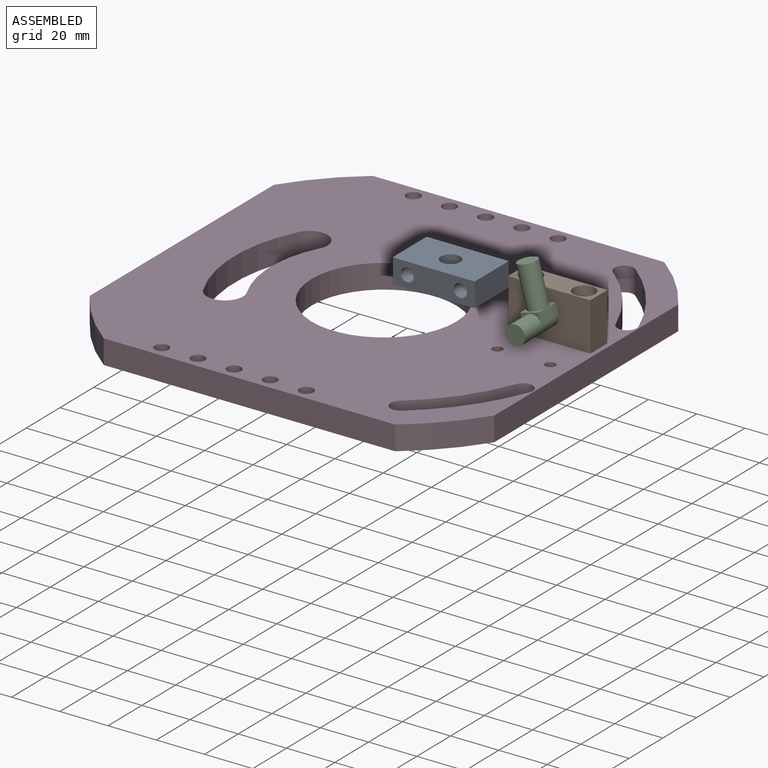
[diagram: assembled view]
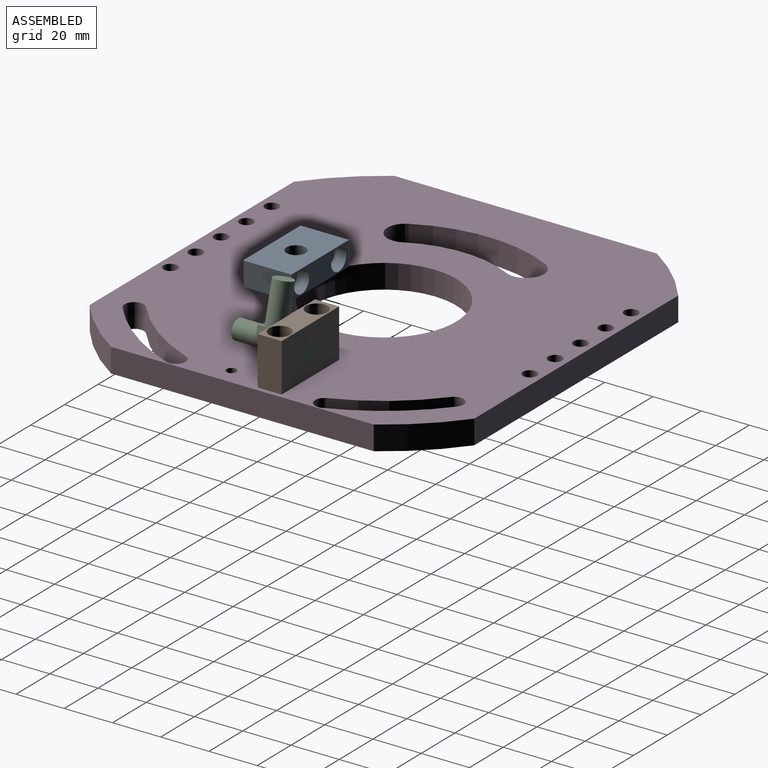
[diagram: assembled view, second angle]
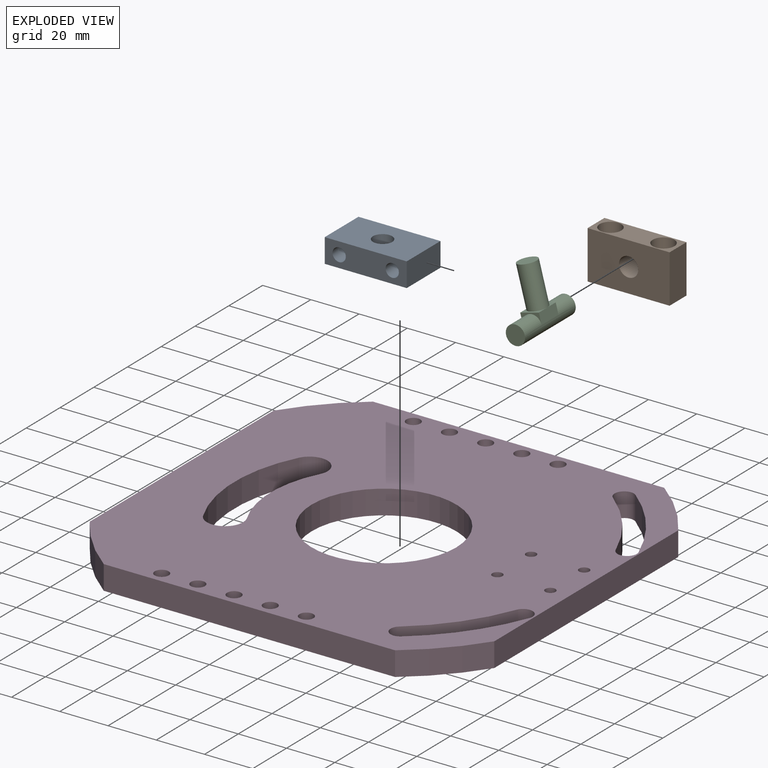
[diagram: exploded view]
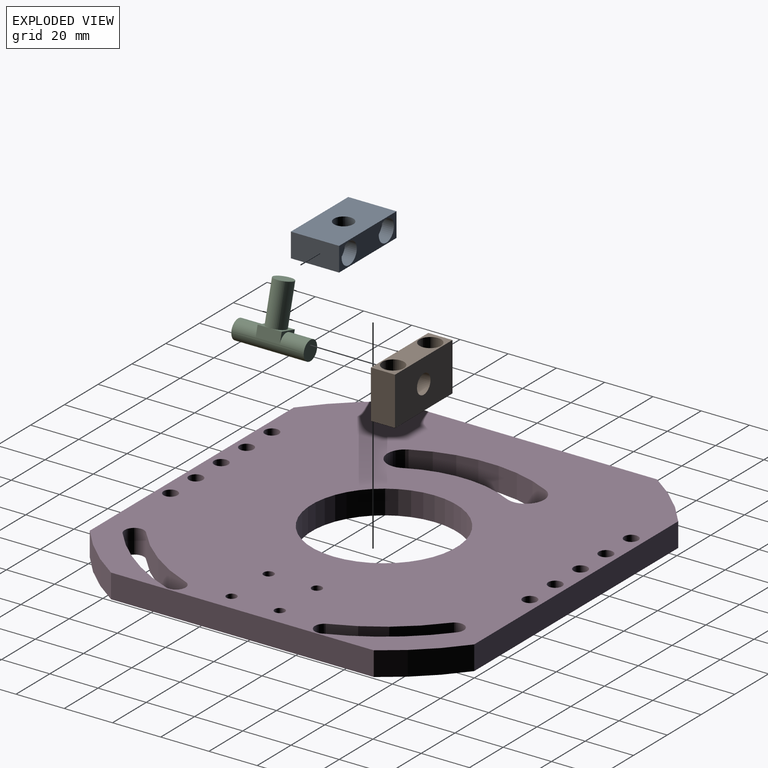
[diagram: exploded view, second angle]
ASSEMBLY  parts=4 mates=2
PART A: 13 faces, bbox 34x20x10 mm
  f0: plane 20x10mm, normal (-1,0,0), area 200mm2, adj f1,f3,f4,f5
  f1: plane 34x10mm, normal (0,-1,0), area 292.5mm2, adj f0,f2,f4,f5,f7,f10
  f2: plane 20x10mm, normal (1,0,0), area 200mm2, adj f1,f3,f4,f5
  f3: plane 34x10mm, normal (0,1,0), area 212.8mm2, adj f0,f2,f4,f5,f9,f12
  f4: plane 34x20mm, normal (0,0,1), area 629.7mm2, adj f0,f1,f2,f3,f6
  f5: plane 34x20mm, normal (0,0,-1), area 629.7mm2, adj f0,f1,f2,f3,f6
  f6: cylinder r=4mm len=10mm, axis (0,0,1), area 251.3mm2, adj f4,f5
  f7: cylinder r=2.75mm len=15mm, axis (0,1,0), area 259.2mm2, adj f1,f8
  f8: plane 9x9mm, normal (0,1,0), area 39.9mm2, adj f7,f9
  f9: cylinder r=4.5mm len=9mm, axis (0,1,0), area 141.4mm2, adj f3,f8
  f10: cylinder r=2.75mm len=15mm, axis (0,1,0), area 259.2mm2, adj f1,f11
  f11: plane 9x9mm, normal (0,1,0), area 39.9mm2, adj f10,f12
  f12: cylinder r=4.5mm len=9mm, axis (0,1,0), area 141.4mm2, adj f3,f11
PART B: same geometry as A
PART C: 11 faces, bbox 30x8x25.5 mm
  f0: plane 8x5mm, normal (0,0,1), area 14.9mm2, adj f2,f3,f5,f9
  f1: plane 8x4.5mm, normal (1,0,0), area 10.9mm2, adj f3,f4,f5,f6
  f2: plane 8x4.5mm, normal (-1,0,0), area 10.9mm2, adj f0,f3,f4,f5
  f3: plane 10x4.5mm, normal (0,-1,0), area 45mm2, adj f0,f1,f2,f4,f6
  f4: cylinder r=4mm len=30mm, axis (-1,0,0), area 628.3mm2, adj f1,f2,f3,f5,f7,f8
  f5: plane 10x4.5mm, normal (0,1,0), area 45mm2, adj f0,f1,f2,f4,f6
  f6: plane 8x5mm, normal (0,0,1), area 14.9mm2, adj f1,f3,f5,f9
  f7: plane 8x8mm, normal (-1,0,0), area 50.3mm2, adj f4
  f8: plane 8x8mm, normal (1,0,0), area 50.3mm2, adj f4
  f9: cylinder r=4mm len=17mm, axis (0,0,-1), area 427.3mm2, adj f0,f6,f10
  f10: plane 8x8mm, normal (0,0,1), area 50.3mm2, adj f9
PART D: 71 faces, bbox 167.7x159.4x10 mm
  f0: cylinder r=100mm len=25.23mm, axis (0,0,-1), area 346.3mm2, adj f3,f4,f66,f69
  f1: cylinder r=100mm len=25.23mm, axis (0,0,-1), area 346.3mm2, adj f3,f4,f68,f69
  f2: cylinder r=100mm len=25.23mm, axis (0,0,-1), area 346.3mm2, adj f3,f4,f67,f68
  f3: plane 167.73x159.4mm, normal (0,0,1), area 20773.7mm2, adj f0,f1,f2,f5,f6,f7,f8,f9
  f4: plane 167.73x159.4mm, normal (0,0,-1), area 20163.8mm2, adj f0,f1,f2,f5,f6,f7,f8,f9
  f5: cylinder r=100mm len=25.23mm, axis (0,0,-1), area 346.3mm2, adj f3,f4,f66,f67
  f6: cylinder r=4mm len=10mm, axis (0,0,-1), area 125.7mm2, adj f3,f4,f7,f9
  f7: cylinder r=81mm len=33.81mm, axis (0,0,-1), area 424.1mm2, adj f3,f4,f6,f8
  f8: cylinder r=4mm len=10mm, axis (0,0,-1), area 125.7mm2, adj f3,f4,f7,f9
  f9: cylinder r=89mm len=37.15mm, axis (0,0,-1), area 466mm2, adj f3,f4,f6,f8
  f10: cylinder r=4mm len=10mm, axis (0,0,-1), area 125.7mm2, adj f3,f4,f11,f13
  f11: cylinder r=81mm len=33.81mm, axis (0,0,-1), area 424.1mm2, adj f3,f4,f10,f12
  f12: cylinder r=4mm len=10mm, axis (0,0,-1), area 125.7mm2, adj f3,f4,f11,f13
  f13: cylinder r=89mm len=37.15mm, axis (0,0,-1), area 466mm2, adj f3,f4,f10,f12
  f14: cylinder r=7.5mm len=14.16mm, axis (0,0,-1), area 235.6mm2, adj f3,f4,f15,f17
  f15: cylinder r=47mm len=43.12mm, axis (0,0,-1), area 448mm2, adj f3,f4,f14,f16
  f16: cylinder r=7.5mm len=14.16mm, axis (0,0,-1), area 235.6mm2, adj f3,f4,f15,f17
  f17: cylinder r=62mm len=56.88mm, axis (0,0,-1), area 590.9mm2, adj f3,f4,f14,f16
  f18: cylinder r=2.9mm len=5.8mm, axis (0,0,-1), area 91.1mm2, adj f3,f19
  f19: plane 9x9mm, normal (0,0,-1), area 37.2mm2, adj f18,f20
  f20: cylinder r=4.5mm len=9mm, axis (0,0,-1), area 121.6mm2, adj f19,f21
  f21: cone r=5.2mm half-angle=45deg, axis (0,0,-1), area 30.2mm2, adj f4,f20
  f22: cylinder r=2.9mm len=5.8mm, axis (0,0,-1), area 91.1mm2, adj f3,f23
  f23: plane 9x9mm, normal (0,0,-1), area 37.2mm2, adj f22,f24
  f24: cylinder r=4.5mm len=9mm, axis (0,0,-1), area 121.6mm2, adj f23,f25
  f25: cone r=5.2mm half-angle=45deg, axis (0,0,-1), area 30.2mm2, adj f4,f24
  f26: cylinder r=2.9mm len=5.8mm, axis (0,0,-1), area 91.1mm2, adj f3,f27
  f27: plane 9x9mm, normal (0,0,-1), area 37.2mm2, adj f26,f28
  f28: cylinder r=4.5mm len=9mm, axis (0,0,-1), area 121.6mm2, adj f27,f29
  f29: cone r=5.2mm half-angle=45deg, axis (0,0,-1), area 30.2mm2, adj f4,f28
  f30: cylinder r=2.9mm len=5.8mm, axis (0,0,-1), area 91.1mm2, adj f3,f31
  f31: plane 9x9mm, normal (0,0,-1), area 37.2mm2, adj f30,f32
  f32: cylinder r=4.5mm len=9mm, axis (0,0,-1), area 121.6mm2, adj f31,f33
  f33: cone r=5.2mm half-angle=45deg, axis (0,0,-1), area 30.2mm2, adj f4,f32
  f34: cylinder r=2.9mm len=5.8mm, axis (0,0,-1), area 91.1mm2, adj f3,f35
  f35: plane 9x9mm, normal (0,0,-1), area 37.2mm2, adj f34,f36
  f36: cylinder r=4.5mm len=9mm, axis (0,0,-1), area 121.6mm2, adj f35,f37
  f37: cone r=5.2mm half-angle=45deg, axis (0,0,-1), area 30.2mm2, adj f4,f36
  f38: cylinder r=2.9mm len=5.8mm, axis (0,0,-1), area 91.1mm2, adj f3,f39
  f39: plane 9x9mm, normal (0,0,-1), area 37.2mm2, adj f38,f40
  f40: cylinder r=4.5mm len=9mm, axis (0,0,-1), area 121.6mm2, adj f39,f41
  f41: cone r=5.2mm half-angle=45deg, axis (0,0,-1), area 30.2mm2, adj f4,f40
  f42: cylinder r=2.9mm len=5.8mm, axis (0,0,-1), area 91.1mm2, adj f3,f43
  f43: plane 9x9mm, normal (0,0,-1), area 37.2mm2, adj f42,f44
  f44: cylinder r=4.5mm len=9mm, axis (0,0,-1), area 121.6mm2, adj f43,f45
  f45: cone r=5.2mm half-angle=45deg, axis (0,0,-1), area 30.2mm2, adj f4,f44
  f46: cylinder r=2.9mm len=5.8mm, axis (0,0,-1), area 91.1mm2, adj f3,f47
  f47: plane 9x9mm, normal (0,0,-1), area 37.2mm2, adj f46,f48
  f48: cylinder r=4.5mm len=9mm, axis (0,0,-1), area 121.6mm2, adj f47,f49
  f49: cone r=5.2mm half-angle=45deg, axis (0,0,-1), area 30.2mm2, adj f4,f48
  f50: cylinder r=2.9mm len=5.8mm, axis (0,0,-1), area 91.1mm2, adj f3,f51
  f51: plane 9x9mm, normal (0,0,-1), area 37.2mm2, adj f50,f52
  f52: cylinder r=4.5mm len=9mm, axis (0,0,-1), area 121.6mm2, adj f51,f53
  f53: cone r=5.2mm half-angle=45deg, axis (0,0,-1), area 30.2mm2, adj f4,f52
  f54: cylinder r=2.9mm len=5.8mm, axis (0,0,-1), area 91.1mm2, adj f3,f55
  f55: plane 9x9mm, normal (0,0,-1), area 37.2mm2, adj f54,f56
  f56: cylinder r=4.5mm len=9mm, axis (0,0,-1), area 121.6mm2, adj f55,f57
  f57: cone r=5.2mm half-angle=45deg, axis (0,0,-1), area 30.2mm2, adj f4,f56
  f58: cylinder r=2.1mm len=9.58mm, axis (0,0,-1), area 126.3mm2, adj f3,f59
  f59: cone r=2.52mm half-angle=45deg, axis (0,0,-1), area 8.7mm2, adj f4,f58
  f60: cylinder r=2.1mm len=9.58mm, axis (0,0,-1), area 126.3mm2, adj f3,f61
  f61: cone r=2.52mm half-angle=45deg, axis (0,0,-1), area 8.7mm2, adj f4,f60
  f62: cylinder r=2.1mm len=9.58mm, axis (0,0,-1), area 126.3mm2, adj f3,f63
  f63: cone r=2.52mm half-angle=45deg, axis (0,0,-1), area 8.7mm2, adj f4,f62
  f64: cylinder r=2.1mm len=9.58mm, axis (0,0,-1), area 126.3mm2, adj f3,f65
  f65: cone r=2.52mm half-angle=45deg, axis (0,0,-1), area 8.7mm2, adj f4,f64
  f66: plane 108.94x10mm, normal (-1,0,0), area 1089.4mm2, adj f0,f3,f4,f5
  f67: plane 120.8x10mm, normal (0,1,0), area 1208mm2, adj f2,f3,f4,f5
  f68: plane 108.94x10mm, normal (1,0,0), area 1089.4mm2, adj f1,f2,f3,f4
  f69: plane 120.8x10mm, normal (0,-1,0), area 1208mm2, adj f0,f1,f3,f4
  f70: cylinder r=30mm len=60mm, axis (0,0,1), area 1885mm2, adj f3,f4
PLACE A at identity
PLACE B rot(axis=(1,0,0),90deg) t=(29.34,36.5,-19.3)mm
PLACE C rot(axis=(-0.13,-0.13,0.98),91deg) t=(46.34,21.5,-9.3)mm
PLACE D t=(-18.66,21.5,-29.3)mm
MATE fastened B.f7 <-> D.f58  axis (0,0,-1) through (57.34,31.5,-19.3)mm
MATE revolute C.f4 <-> B.f6  axis (0,-1,0) through (46.34,36.5,-9.3)mm
